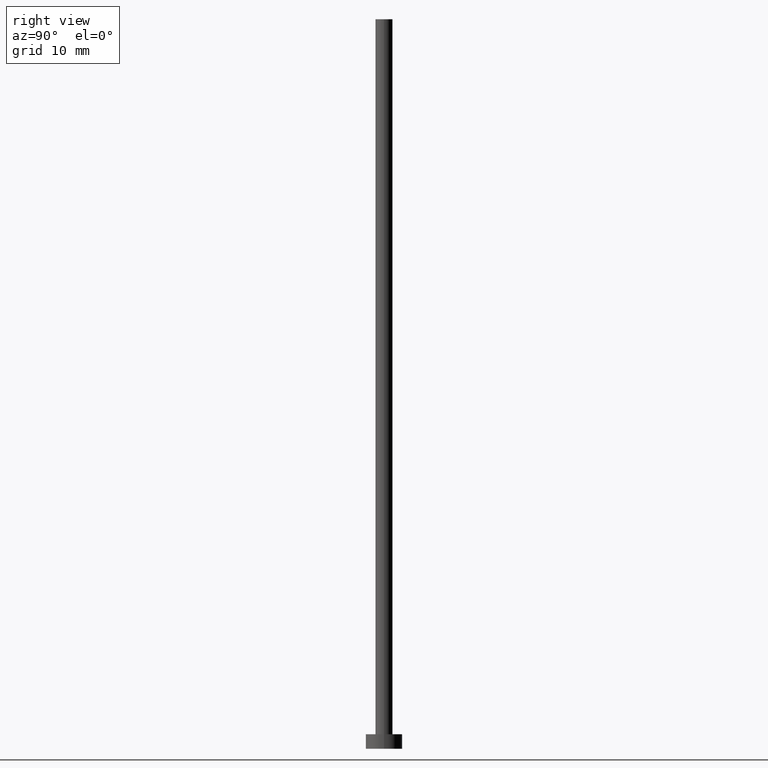
[diagram: clean part render]
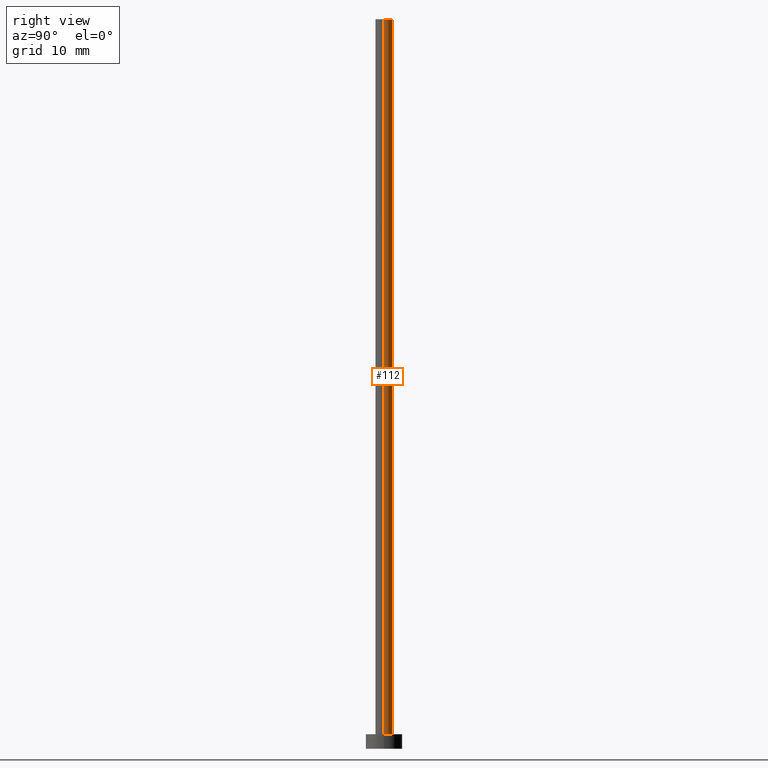
[diagram: same view with one face highlighted and labeled with its STEP entity id]
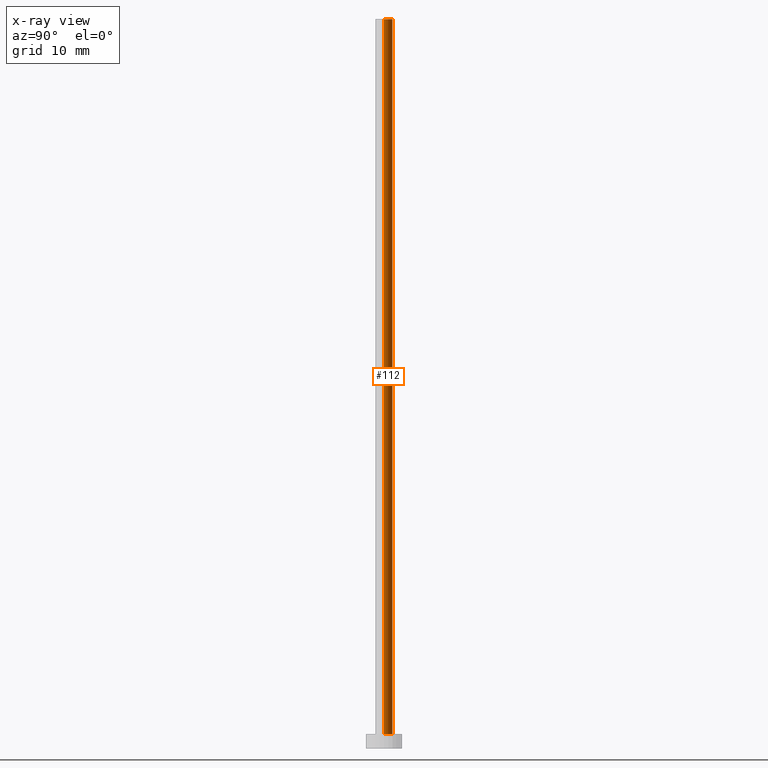
[diagram: x-ray of the same camera — body ghosted, the highlighted face saturated]
A machine part, right view. The second image highlights one B-rep face of the part: STEP entity #112.
The next image is the same camera in x-ray: the body ghosted, the highlighted face saturated — about 0% of this face is hidden behind the body in this view.
In plain terms, the highlighted cylindrical surface (edge-blend (fillet) strip) has radius 1.175 mm, axis along (-0, -0, -1).
Its self-contained STEP definition (entity closure, byte-faithful):
#1 = DIRECTION ( 'NONE',  ( -0.000000000000000000, -0.000000000000000000, -1.000000000000000000 ) ) ;
#4 = LINE ( 'NONE', #130, #234 ) ;
#6 = EDGE_CURVE ( 'NONE', #80, #147, #4, .T. ) ;
#22 = ORIENTED_EDGE ( 'NONE', *, *, #122, .T. ) ;
#46 = DIRECTION ( 'NONE',  ( -0.000000000000000000, -0.000000000000000000, -1.000000000000000000 ) ) ;
#50 = DIRECTION ( 'NONE',  ( 0.000000000000000000, 0.000000000000000000, 1.000000000000000000 ) ) ;
#62 = AXIS2_PLACEMENT_3D ( 'NONE', #157, #243, #178 ) ;
#64 = LINE ( 'NONE', #158, #97 ) ;
#80 = VERTEX_POINT ( 'NONE', #137 ) ;
#88 = DIRECTION ( 'NONE',  ( 0.000000000000000000, 0.000000000000000000, 1.000000000000000000 ) ) ;
#97 = VECTOR ( 'NONE', #46, 1000.000000000000000 ) ;
#106 = AXIS2_PLACEMENT_3D ( 'NONE', #179, #50, #139 ) ;
#112 = ADVANCED_FACE ( 'NONE', ( #211 ), #152, .T. ) ;
#118 = CIRCLE ( 'NONE', #106, 1.175000000000000044 ) ;
#122 = EDGE_CURVE ( 'NONE', #186, #206, #64, .T. ) ;
#130 = CARTESIAN_POINT ( 'NONE',  ( -1.175000000000000044, 0.000000000000000000, 100.0000000000000000 ) ) ;
#137 = CARTESIAN_POINT ( 'NONE',  ( -1.175000000000000044, 0.000000000000000000, 100.0000000000000000 ) ) ;
#138 = CIRCLE ( 'NONE', #226, 1.175000000000000044 ) ;
#139 = DIRECTION ( 'NONE',  ( 1.000000000000000000, 0.000000000000000000, 0.000000000000000000 ) ) ;
#147 = VERTEX_POINT ( 'NONE', #212 ) ;
#152 = CYLINDRICAL_SURFACE ( 'NONE', #62, 1.175000000000000044 ) ;
#154 = CARTESIAN_POINT ( 'NONE',  ( 1.175000000000000044, 1.438959988998139914E-16, 100.0000000000000000 ) ) ;
#155 = CARTESIAN_POINT ( 'NONE',  ( 1.175000000000000044, 1.438959988998139914E-16, 2.000000000000000000 ) ) ;
#157 = CARTESIAN_POINT ( 'NONE',  ( 0.000000000000000000, 0.000000000000000000, 100.0000000000000000 ) ) ;
#158 = CARTESIAN_POINT ( 'NONE',  ( 1.175000000000000044, 1.438959988998139914E-16, 100.0000000000000000 ) ) ;
#168 = EDGE_LOOP ( 'NONE', ( #202, #22, #203, #217 ) ) ;
#174 = DIRECTION ( 'NONE',  ( 1.000000000000000000, 0.000000000000000000, 0.000000000000000000 ) ) ;
#178 = DIRECTION ( 'NONE',  ( -1.000000000000000000, 0.000000000000000000, 0.000000000000000000 ) ) ;
#179 = CARTESIAN_POINT ( 'NONE',  ( 0.000000000000000000, 0.000000000000000000, 2.000000000000000000 ) ) ;
#183 = EDGE_CURVE ( 'NONE', #186, #80, #138, .T. ) ;
#186 = VERTEX_POINT ( 'NONE', #154 ) ;
#193 = CARTESIAN_POINT ( 'NONE',  ( 0.000000000000000000, 0.000000000000000000, 100.0000000000000000 ) ) ;
#202 = ORIENTED_EDGE ( 'NONE', *, *, #183, .F. ) ;
#203 = ORIENTED_EDGE ( 'NONE', *, *, #225, .T. ) ;
#206 = VERTEX_POINT ( 'NONE', #155 ) ;
#211 = FACE_OUTER_BOUND ( 'NONE', #168, .T. ) ;
#212 = CARTESIAN_POINT ( 'NONE',  ( -1.175000000000000044, 0.000000000000000000, 2.000000000000000000 ) ) ;
#217 = ORIENTED_EDGE ( 'NONE', *, *, #6, .F. ) ;
#225 = EDGE_CURVE ( 'NONE', #206, #147, #118, .T. ) ;
#226 = AXIS2_PLACEMENT_3D ( 'NONE', #193, #88, #174 ) ;
#234 = VECTOR ( 'NONE', #1, 1000.000000000000000 ) ;
#243 = DIRECTION ( 'NONE',  ( -0.000000000000000000, -0.000000000000000000, -1.000000000000000000 ) ) ;